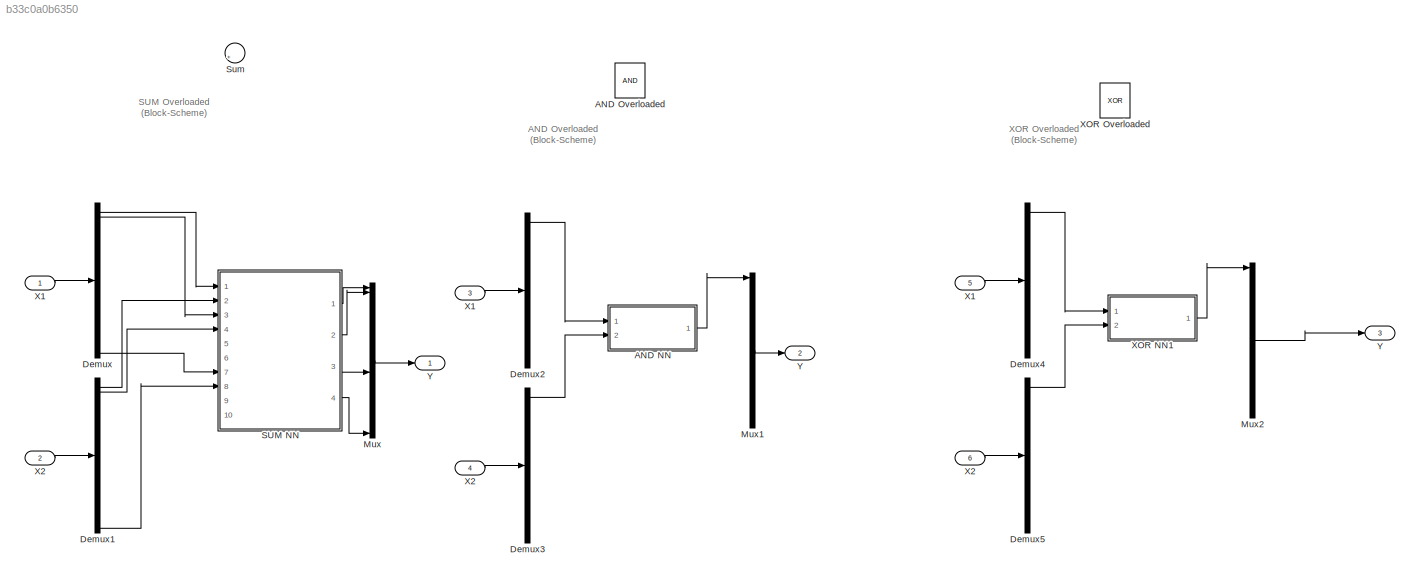
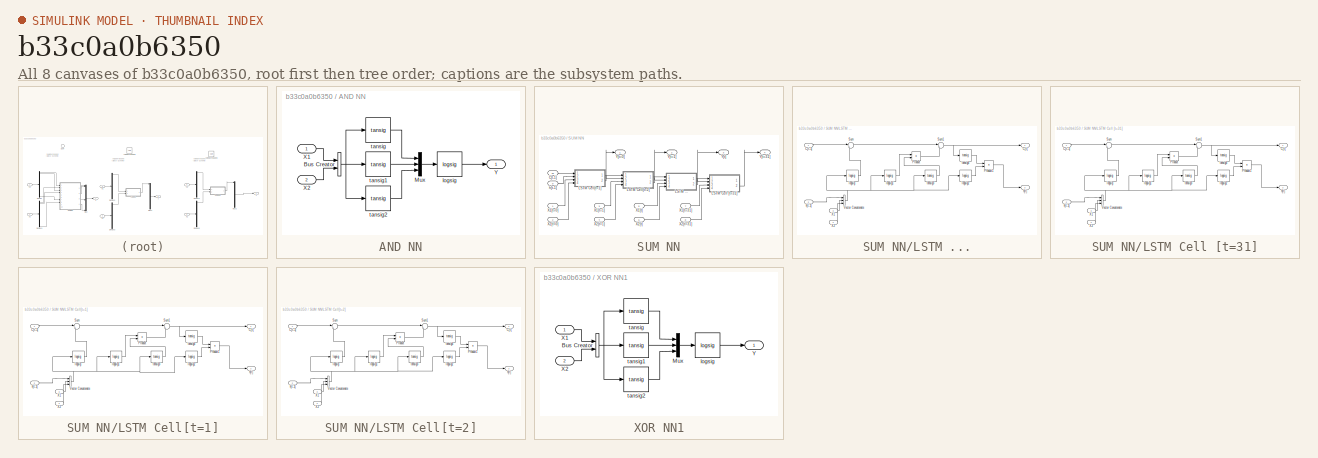
[diagram: thumbnail index - all 8 canvases of the model, root first then tree order]
MODEL slx_b33c0a0b6350
KIND model
CONFIG AbsTol = auto
CONFIG EnableMultiTasking = off
CONFIG FixedStep = auto
CONFIG MaxStep = auto
CONFIG MinStep = auto
CONFIG RelTol = 1e-3
CONFIG SampleTimeConstraint = Unconstrained
CONFIG Solver = VariableStepAuto
CONFIG SolverName = VariableStepAuto
CONFIG StartTime = 0.0
CONFIG StopTime = 10.0
BLOCK [SubSystem] AND NN
  Ports = [2, 1]
  RequestExecContextInheritance = off
BLOCK [BusCreator] AND NN/Bus Creator
  DisplayOption = bar
  InheritFromInputs = on
  Inputs = 2
  Ports = [2, 1]
BLOCK [Mux] AND NN/Mux
  DisplayOption = bar
  Inputs = 3
  Ports = [3, 1]
BLOCK [Inport] AND NN/X1
  IconDisplay = Port number
BLOCK [Inport] AND NN/X2
  IconDisplay = Port number
  Port = 2
BLOCK [Outport] AND NN/Y
  IconDisplay = Port number
BLOCK [Reference] AND NN/logsig  REF=neural/Transfer Functions/logsig
  Ports = [1, 1]
  SourceBlock = neural/Transfer Functions/logsig
  SourceType = LOGSIG
BLOCK [Reference] AND NN/tansig  REF=neural/Transfer Functions/tansig
  Ports = [1, 1]
  SourceBlock = neural/Transfer Functions/tansig
  SourceType = TANSIG
BLOCK [Reference] AND NN/tansig1  REF=neural/Transfer Functions/tansig
  Ports = [1, 1]
  SourceBlock = neural/Transfer Functions/tansig
  SourceType = TANSIG
BLOCK [Reference] AND NN/tansig2  REF=neural/Transfer Functions/tansig
  Ports = [1, 1]
  SourceBlock = neural/Transfer Functions/tansig
  SourceType = TANSIG
BLOCK [Logic] AND Overloaded
  AllPortsSameDT = off
  OutDataTypeStr = boolean
  Ports = [2, 1]
BLOCK [Demux] Demux
  DisplayOption = bar
  Outputs = 32
  Ports = [1, 32]
BLOCK [Demux] Demux1
  DisplayOption = bar
  Outputs = 32
  Ports = [1, 32]
BLOCK [Demux] Demux2
  DisplayOption = bar
  Outputs = 32
  Ports = [1, 32]
BLOCK [Demux] Demux3
  DisplayOption = bar
  Outputs = 32
  Ports = [1, 32]
BLOCK [Demux] Demux4
  DisplayOption = bar
  Outputs = 32
  Ports = [1, 32]
BLOCK [Demux] Demux5
  DisplayOption = bar
  Outputs = 32
  Ports = [1, 32]
BLOCK [Mux] Mux
  DisplayOption = bar
  Inputs = 32
  Ports = [32, 1]
BLOCK [Mux] Mux1
  DisplayOption = bar
  Inputs = 32
  Ports = [32, 1]
BLOCK [Mux] Mux2
  DisplayOption = bar
  Inputs = 32
  Ports = [32, 1]
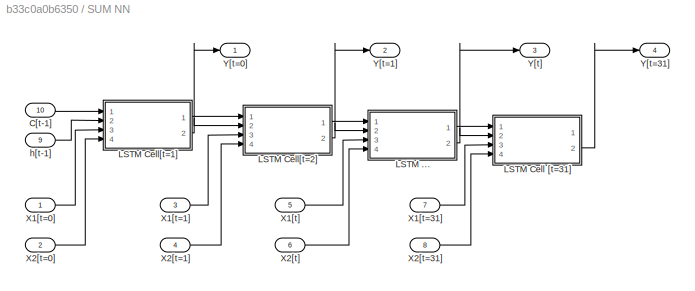
BLOCK [SubSystem] SUM NN
  Ports = [10, 4]
  RequestExecContextInheritance = off
BLOCK [Inport] SUM NN/C[t-1]
  IconDisplay = Port number
  Port = 10
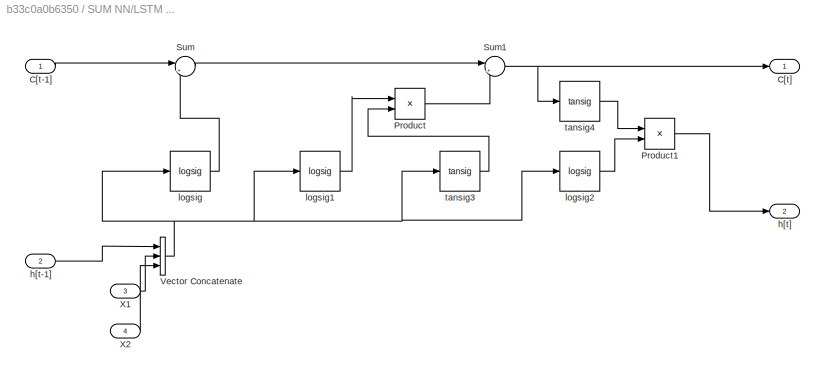
BLOCK [SubSystem] SUM NN/LSTM ...
  Ports = [4, 2]
  RequestExecContextInheritance = off
BLOCK [Inport] SUM NN/LSTM .../C[t-1]
  IconDisplay = Port number
BLOCK [Outport] SUM NN/LSTM .../C[t]
  IconDisplay = Port number
BLOCK [Product] SUM NN/LSTM .../Product
  InputSameDT = off
  OutDataTypeStr = Inherit: Inherit via internal rule
  Ports = [2, 1]
  RndMeth = Floor
  SaturateOnIntegerOverflow = off
BLOCK [Product] SUM NN/LSTM .../Product1
  InputSameDT = off
  OutDataTypeStr = Inherit: Inherit via internal rule
  Ports = [2, 1]
  RndMeth = Floor
  SaturateOnIntegerOverflow = off
BLOCK [Sum] SUM NN/LSTM .../Sum
  IconShape = round
  InputSameDT = off
  Inputs = |++
  OutDataTypeStr = Inherit: Inherit via internal rule
  Ports = [2, 1]
  SaturateOnIntegerOverflow = off
BLOCK [Sum] SUM NN/LSTM .../Sum1
  IconShape = round
  InputSameDT = off
  Inputs = |++
  OutDataTypeStr = Inherit: Inherit via internal rule
  Ports = [2, 1]
  SaturateOnIntegerOverflow = off
BLOCK [Concatenate] SUM NN/LSTM .../Vector Concatenate
  NumInputs = 3
  Ports = [3, 1]
BLOCK [Inport] SUM NN/LSTM .../X1
  IconDisplay = Port number
  Port = 3
BLOCK [Inport] SUM NN/LSTM .../X2
  IconDisplay = Port number
  Port = 4
BLOCK [Inport] SUM NN/LSTM .../h[t-1]
  IconDisplay = Port number
  Port = 2
BLOCK [Outport] SUM NN/LSTM .../h[t]
  IconDisplay = Port number
  Port = 2
BLOCK [Reference] SUM NN/LSTM .../logsig  REF=neural/Transfer Functions/logsig
  Ports = [1, 1]
  SourceBlock = neural/Transfer Functions/logsig
  SourceType = LOGSIG
BLOCK [Reference] SUM NN/LSTM .../logsig1  REF=neural/Transfer Functions/logsig
  Ports = [1, 1]
  SourceBlock = neural/Transfer Functions/logsig
  SourceType = LOGSIG
BLOCK [Reference] SUM NN/LSTM .../logsig2  REF=neural/Transfer Functions/logsig
  Ports = [1, 1]
  SourceBlock = neural/Transfer Functions/logsig
  SourceType = LOGSIG
BLOCK [Reference] SUM NN/LSTM .../tansig3  REF=neural/Transfer Functions/tansig
  Ports = [1, 1]
  SourceBlock = neural/Transfer Functions/tansig
  SourceType = TANSIG
BLOCK [Reference] SUM NN/LSTM .../tansig4  REF=neural/Transfer Functions/tansig
  Ports = [1, 1]
  SourceBlock = neural/Transfer Functions/tansig
  SourceType = TANSIG
BLOCK [SubSystem] SUM NN/LSTM Cell [t=31]
  Ports = [4, 2]
  RequestExecContextInheritance = off
BLOCK [Inport] SUM NN/LSTM Cell [t=31]/C[t-1]
  IconDisplay = Port number
BLOCK [Outport] SUM NN/LSTM Cell [t=31]/C[t]
  IconDisplay = Port number
BLOCK [Product] SUM NN/LSTM Cell [t=31]/Product
  InputSameDT = off
  OutDataTypeStr = Inherit: Inherit via internal rule
  Ports = [2, 1]
  RndMeth = Floor
  SaturateOnIntegerOverflow = off
BLOCK [Product] SUM NN/LSTM Cell [t=31]/Product1
  InputSameDT = off
  OutDataTypeStr = Inherit: Inherit via internal rule
  Ports = [2, 1]
  RndMeth = Floor
  SaturateOnIntegerOverflow = off
BLOCK [Sum] SUM NN/LSTM Cell [t=31]/Sum
  IconShape = round
  InputSameDT = off
  Inputs = |++
  OutDataTypeStr = Inherit: Inherit via internal rule
  Ports = [2, 1]
  SaturateOnIntegerOverflow = off
BLOCK [Sum] SUM NN/LSTM Cell [t=31]/Sum1
  IconShape = round
  InputSameDT = off
  Inputs = |++
  OutDataTypeStr = Inherit: Inherit via internal rule
  Ports = [2, 1]
  SaturateOnIntegerOverflow = off
BLOCK [Concatenate] SUM NN/LSTM Cell [t=31]/Vector Concatenate
  NumInputs = 3
  Ports = [3, 1]
BLOCK [Inport] SUM NN/LSTM Cell [t=31]/X1
  IconDisplay = Port number
  Port = 3
BLOCK [Inport] SUM NN/LSTM Cell [t=31]/X2
  IconDisplay = Port number
  Port = 4
BLOCK [Inport] SUM NN/LSTM Cell [t=31]/h[t-1]
  IconDisplay = Port number
  Port = 2
BLOCK [Outport] SUM NN/LSTM Cell [t=31]/h[t]
  IconDisplay = Port number
  Port = 2
BLOCK [Reference] SUM NN/LSTM Cell [t=31]/logsig  REF=neural/Transfer Functions/logsig
  Ports = [1, 1]
  SourceBlock = neural/Transfer Functions/logsig
  SourceType = LOGSIG
BLOCK [Reference] SUM NN/LSTM Cell [t=31]/logsig1  REF=neural/Transfer Functions/logsig
  Ports = [1, 1]
  SourceBlock = neural/Transfer Functions/logsig
  SourceType = LOGSIG
BLOCK [Reference] SUM NN/LSTM Cell [t=31]/logsig2  REF=neural/Transfer Functions/logsig
  Ports = [1, 1]
  SourceBlock = neural/Transfer Functions/logsig
  SourceType = LOGSIG
BLOCK [Reference] SUM NN/LSTM Cell [t=31]/tansig3  REF=neural/Transfer Functions/tansig
  Ports = [1, 1]
  SourceBlock = neural/Transfer Functions/tansig
  SourceType = TANSIG
BLOCK [Reference] SUM NN/LSTM Cell [t=31]/tansig4  REF=neural/Transfer Functions/tansig
  Ports = [1, 1]
  SourceBlock = neural/Transfer Functions/tansig
  SourceType = TANSIG
BLOCK [SubSystem] SUM NN/LSTM Cell[t=1]
  Ports = [4, 2]
  RequestExecContextInheritance = off
BLOCK [Inport] SUM NN/LSTM Cell[t=1]/C[t-1]
  IconDisplay = Port number
BLOCK [Outport] SUM NN/LSTM Cell[t=1]/C[t]
  IconDisplay = Port number
BLOCK [Product] SUM NN/LSTM Cell[t=1]/Product
  InputSameDT = off
  OutDataTypeStr = Inherit: Inherit via internal rule
  Ports = [2, 1]
  RndMeth = Floor
  SaturateOnIntegerOverflow = off
BLOCK [Product] SUM NN/LSTM Cell[t=1]/Product1
  InputSameDT = off
  OutDataTypeStr = Inherit: Inherit via internal rule
  Ports = [2, 1]
  RndMeth = Floor
  SaturateOnIntegerOverflow = off
BLOCK [Sum] SUM NN/LSTM Cell[t=1]/Sum
  IconShape = round
  InputSameDT = off
  Inputs = |++
  OutDataTypeStr = Inherit: Inherit via internal rule
  Ports = [2, 1]
  SaturateOnIntegerOverflow = off
BLOCK [Sum] SUM NN/LSTM Cell[t=1]/Sum1
  IconShape = round
  InputSameDT = off
  Inputs = |++
  OutDataTypeStr = Inherit: Inherit via internal rule
  Ports = [2, 1]
  SaturateOnIntegerOverflow = off
BLOCK [Concatenate] SUM NN/LSTM Cell[t=1]/Vector Concatenate
  NumInputs = 3
  Ports = [3, 1]
BLOCK [Inport] SUM NN/LSTM Cell[t=1]/X1
  IconDisplay = Port number
  Port = 3
BLOCK [Inport] SUM NN/LSTM Cell[t=1]/X2
  IconDisplay = Port number
  Port = 4
BLOCK [Inport] SUM NN/LSTM Cell[t=1]/h[t-1]
  IconDisplay = Port number
  Port = 2
BLOCK [Outport] SUM NN/LSTM Cell[t=1]/h[t]
  IconDisplay = Port number
  Port = 2
BLOCK [Reference] SUM NN/LSTM Cell[t=1]/logsig  REF=neural/Transfer Functions/logsig
  Ports = [1, 1]
  SourceBlock = neural/Transfer Functions/logsig
  SourceType = LOGSIG
BLOCK [Reference] SUM NN/LSTM Cell[t=1]/logsig1  REF=neural/Transfer Functions/logsig
  Ports = [1, 1]
  SourceBlock = neural/Transfer Functions/logsig
  SourceType = LOGSIG
BLOCK [Reference] SUM NN/LSTM Cell[t=1]/logsig2  REF=neural/Transfer Functions/logsig
  Ports = [1, 1]
  SourceBlock = neural/Transfer Functions/logsig
  SourceType = LOGSIG
BLOCK [Reference] SUM NN/LSTM Cell[t=1]/tansig3  REF=neural/Transfer Functions/tansig
  Ports = [1, 1]
  SourceBlock = neural/Transfer Functions/tansig
  SourceType = TANSIG
BLOCK [Reference] SUM NN/LSTM Cell[t=1]/tansig4  REF=neural/Transfer Functions/tansig
  Ports = [1, 1]
  SourceBlock = neural/Transfer Functions/tansig
  SourceType = TANSIG
BLOCK [SubSystem] SUM NN/LSTM Cell[t=2]
  Ports = [4, 2]
  RequestExecContextInheritance = off
BLOCK [Inport] SUM NN/LSTM Cell[t=2]/C[t-1]
  IconDisplay = Port number
BLOCK [Outport] SUM NN/LSTM Cell[t=2]/C[t]
  IconDisplay = Port number
BLOCK [Product] SUM NN/LSTM Cell[t=2]/Product
  InputSameDT = off
  OutDataTypeStr = Inherit: Inherit via internal rule
  Ports = [2, 1]
  RndMeth = Floor
  SaturateOnIntegerOverflow = off
BLOCK [Product] SUM NN/LSTM Cell[t=2]/Product1
  InputSameDT = off
  OutDataTypeStr = Inherit: Inherit via internal rule
  Ports = [2, 1]
  RndMeth = Floor
  SaturateOnIntegerOverflow = off
BLOCK [Sum] SUM NN/LSTM Cell[t=2]/Sum
  IconShape = round
  InputSameDT = off
  Inputs = |++
  OutDataTypeStr = Inherit: Inherit via internal rule
  Ports = [2, 1]
  SaturateOnIntegerOverflow = off
BLOCK [Sum] SUM NN/LSTM Cell[t=2]/Sum1
  IconShape = round
  InputSameDT = off
  Inputs = |++
  OutDataTypeStr = Inherit: Inherit via internal rule
  Ports = [2, 1]
  SaturateOnIntegerOverflow = off
BLOCK [Concatenate] SUM NN/LSTM Cell[t=2]/Vector Concatenate
  NumInputs = 3
  Ports = [3, 1]
BLOCK [Inport] SUM NN/LSTM Cell[t=2]/X1
  IconDisplay = Port number
  Port = 3
BLOCK [Inport] SUM NN/LSTM Cell[t=2]/X2
  IconDisplay = Port number
  Port = 4
BLOCK [Inport] SUM NN/LSTM Cell[t=2]/h[t-1]
  IconDisplay = Port number
  Port = 2
BLOCK [Outport] SUM NN/LSTM Cell[t=2]/h[t]
  IconDisplay = Port number
  Port = 2
BLOCK [Reference] SUM NN/LSTM Cell[t=2]/logsig  REF=neural/Transfer Functions/logsig
  Ports = [1, 1]
  SourceBlock = neural/Transfer Functions/logsig
  SourceType = LOGSIG
BLOCK [Reference] SUM NN/LSTM Cell[t=2]/logsig1  REF=neural/Transfer Functions/logsig
  Ports = [1, 1]
  SourceBlock = neural/Transfer Functions/logsig
  SourceType = LOGSIG
BLOCK [Reference] SUM NN/LSTM Cell[t=2]/logsig2  REF=neural/Transfer Functions/logsig
  Ports = [1, 1]
  SourceBlock = neural/Transfer Functions/logsig
  SourceType = LOGSIG
BLOCK [Reference] SUM NN/LSTM Cell[t=2]/tansig3  REF=neural/Transfer Functions/tansig
  Ports = [1, 1]
  SourceBlock = neural/Transfer Functions/tansig
  SourceType = TANSIG
BLOCK [Reference] SUM NN/LSTM Cell[t=2]/tansig4  REF=neural/Transfer Functions/tansig
  Ports = [1, 1]
  SourceBlock = neural/Transfer Functions/tansig
  SourceType = TANSIG
BLOCK [Inport] SUM NN/X1[t=0]
  IconDisplay = Port number
BLOCK [Inport] SUM NN/X1[t=1]
  IconDisplay = Port number
  Port = 3
BLOCK [Inport] SUM NN/X1[t=31]
  IconDisplay = Port number
  Port = 7
BLOCK [Inport] SUM NN/X1[t]
  IconDisplay = Port number
  Port = 5
BLOCK [Inport] SUM NN/X2[t=0]
  IconDisplay = Port number
  Port = 2
BLOCK [Inport] SUM NN/X2[t=1]
  IconDisplay = Port number
  Port = 4
BLOCK [Inport] SUM NN/X2[t=31]
  IconDisplay = Port number
  Port = 8
BLOCK [Inport] SUM NN/X2[t]
  IconDisplay = Port number
  Port = 6
BLOCK [Outport] SUM NN/Y[t=0]
  IconDisplay = Port number
BLOCK [Outport] SUM NN/Y[t=1]
  IconDisplay = Port number
  Port = 2
BLOCK [Outport] SUM NN/Y[t=31]
  IconDisplay = Port number
  Port = 4
BLOCK [Outport] SUM NN/Y[t]
  IconDisplay = Port number
  Port = 3
BLOCK [Inport] SUM NN/h[t-1]
  IconDisplay = Port number
  Port = 9
BLOCK [Sum] Sum
  IconShape = round
  InputSameDT = off
  Inputs = |++
  OutDataTypeStr = Inherit: Inherit via internal rule
  Ports = [2, 1]
  SaturateOnIntegerOverflow = off
BLOCK [Inport] X1
  IconDisplay = Port number
BLOCK [Inport] X1 
  IconDisplay = Port number
  Port = 3
BLOCK [Inport] X1   
  IconDisplay = Port number
  Port = 5
BLOCK [Inport] X2
  IconDisplay = Port number
  Port = 2
BLOCK [Inport] X2 
  IconDisplay = Port number
  Port = 4
BLOCK [Inport] X2  
  IconDisplay = Port number
  Port = 6
BLOCK [SubSystem] XOR NN1
  Ports = [2, 1]
  RequestExecContextInheritance = off
BLOCK [BusCreator] XOR NN1/Bus Creator
  DisplayOption = bar
  InheritFromInputs = on
  Inputs = 2
  Ports = [2, 1]
BLOCK [Mux] XOR NN1/Mux
  DisplayOption = bar
  Inputs = 3
  Ports = [3, 1]
BLOCK [Inport] XOR NN1/X1
  IconDisplay = Port number
BLOCK [Inport] XOR NN1/X2
  IconDisplay = Port number
  Port = 2
BLOCK [Outport] XOR NN1/Y
  IconDisplay = Port number
BLOCK [Reference] XOR NN1/logsig  REF=neural/Transfer Functions/logsig
  Ports = [1, 1]
  SourceBlock = neural/Transfer Functions/logsig
  SourceType = LOGSIG
BLOCK [Reference] XOR NN1/tansig  REF=neural/Transfer Functions/tansig
  Ports = [1, 1]
  SourceBlock = neural/Transfer Functions/tansig
  SourceType = TANSIG
BLOCK [Reference] XOR NN1/tansig1  REF=neural/Transfer Functions/tansig
  Ports = [1, 1]
  SourceBlock = neural/Transfer Functions/tansig
  SourceType = TANSIG
BLOCK [Reference] XOR NN1/tansig2  REF=neural/Transfer Functions/tansig
  Ports = [1, 1]
  SourceBlock = neural/Transfer Functions/tansig
  SourceType = TANSIG
BLOCK [Logic] XOR Overloaded
  AllPortsSameDT = off
  Operator = XOR
  OutDataTypeStr = boolean
  Ports = [2, 1]
BLOCK [Outport] Y
  IconDisplay = Port number
BLOCK [Outport] Y 
  IconDisplay = Port number
  Port = 2
BLOCK [Outport] Y  
  IconDisplay = Port number
  Port = 3
ANNOTATION (root): AND Overloaded (Block-Scheme)
ANNOTATION (root): SUM Overloaded (Block-Scheme)
ANNOTATION (root): XOR Overloaded (Block-Scheme)
NET AND NN/Bus Creator:1 -> AND NN/tansig1:1, AND NN/tansig2:1, AND NN/tansig:1
LINE AND NN/Mux:1 -> AND NN/logsig:1
LINE AND NN/X1:1 -> AND NN/Bus Creator:1
LINE AND NN/X2:1 -> AND NN/Bus Creator:2
LINE AND NN/logsig:1 -> AND NN/Y:1
LINE AND NN/tansig1:1 -> AND NN/Mux:2
LINE AND NN/tansig2:1 -> AND NN/Mux:3
LINE AND NN/tansig:1 -> AND NN/Mux:1
LINE AND NN:1 -> Mux1:1
LINE Demux1:2 -> SUM NN:2
LINE Demux1:3 -> SUM NN:4
LINE Demux1:32 -> SUM NN:8
LINE Demux2:2 -> AND NN:1
LINE Demux3:2 -> AND NN:2
LINE Demux4:2 -> XOR NN1:1
LINE Demux5:2 -> XOR NN1:2
LINE Demux:2 -> SUM NN:1
LINE Demux:3 -> SUM NN:3
LINE Demux:32 -> SUM NN:7
LINE Mux1:1 -> Y :1
LINE Mux2:1 -> Y  :1
LINE Mux:1 -> Y:1
LINE SUM NN/C[t-1]:1 -> SUM NN/LSTM Cell[t=1]:1
LINE SUM NN/LSTM .../C[t-1]:1 -> SUM NN/LSTM .../Sum:1
LINE SUM NN/LSTM .../Product1:1 -> SUM NN/LSTM .../h[t]:1
LINE SUM NN/LSTM .../Product:1 -> SUM NN/LSTM .../Sum1:2
NET SUM NN/LSTM .../Sum1:1 -> SUM NN/LSTM .../C[t]:1, SUM NN/LSTM .../tansig4:1
LINE SUM NN/LSTM .../Sum:1 -> SUM NN/LSTM .../Sum1:1
NET SUM NN/LSTM .../Vector Concatenate:1 -> SUM NN/LSTM .../logsig1:1, SUM NN/LSTM .../logsig2:1, SUM NN/LSTM .../logsig:1, SUM NN/LSTM .../tansig3:1
LINE SUM NN/LSTM .../X1:1 -> SUM NN/LSTM .../Vector Concatenate:2
LINE SUM NN/LSTM .../X2:1 -> SUM NN/LSTM .../Vector Concatenate:3
LINE SUM NN/LSTM .../h[t-1]:1 -> SUM NN/LSTM .../Vector Concatenate:1
LINE SUM NN/LSTM .../logsig1:1 -> SUM NN/LSTM .../Product:1
LINE SUM NN/LSTM .../logsig2:1 -> SUM NN/LSTM .../Product1:2
LINE SUM NN/LSTM .../logsig:1 -> SUM NN/LSTM .../Sum:2
LINE SUM NN/LSTM .../tansig3:1 -> SUM NN/LSTM .../Product:2
LINE SUM NN/LSTM .../tansig4:1 -> SUM NN/LSTM .../Product1:1
LINE SUM NN/LSTM ...:1 -> SUM NN/LSTM Cell [t=31]:1
NET SUM NN/LSTM ...:2 -> SUM NN/LSTM Cell [t=31]:2, SUM NN/Y[t]:1
LINE SUM NN/LSTM Cell [t=31]/C[t-1]:1 -> SUM NN/LSTM Cell [t=31]/Sum:1
LINE SUM NN/LSTM Cell [t=31]/Product1:1 -> SUM NN/LSTM Cell [t=31]/h[t]:1
LINE SUM NN/LSTM Cell [t=31]/Product:1 -> SUM NN/LSTM Cell [t=31]/Sum1:2
NET SUM NN/LSTM Cell [t=31]/Sum1:1 -> SUM NN/LSTM Cell [t=31]/C[t]:1, SUM NN/LSTM Cell [t=31]/tansig4:1
LINE SUM NN/LSTM Cell [t=31]/Sum:1 -> SUM NN/LSTM Cell [t=31]/Sum1:1
NET SUM NN/LSTM Cell [t=31]/Vector Concatenate:1 -> SUM NN/LSTM Cell [t=31]/logsig1:1, SUM NN/LSTM Cell [t=31]/logsig2:1, SUM NN/LSTM Cell [t=31]/logsig:1, SUM NN/LSTM Cell [t=31]/tansig3:1
LINE SUM NN/LSTM Cell [t=31]/X1:1 -> SUM NN/LSTM Cell [t=31]/Vector Concatenate:2
LINE SUM NN/LSTM Cell [t=31]/X2:1 -> SUM NN/LSTM Cell [t=31]/Vector Concatenate:3
LINE SUM NN/LSTM Cell [t=31]/h[t-1]:1 -> SUM NN/LSTM Cell [t=31]/Vector Concatenate:1
LINE SUM NN/LSTM Cell [t=31]/logsig1:1 -> SUM NN/LSTM Cell [t=31]/Product:1
LINE SUM NN/LSTM Cell [t=31]/logsig2:1 -> SUM NN/LSTM Cell [t=31]/Product1:2
LINE SUM NN/LSTM Cell [t=31]/logsig:1 -> SUM NN/LSTM Cell [t=31]/Sum:2
LINE SUM NN/LSTM Cell [t=31]/tansig3:1 -> SUM NN/LSTM Cell [t=31]/Product:2
LINE SUM NN/LSTM Cell [t=31]/tansig4:1 -> SUM NN/LSTM Cell [t=31]/Product1:1
LINE SUM NN/LSTM Cell [t=31]:2 -> SUM NN/Y[t=31]:1
LINE SUM NN/LSTM Cell[t=1]/C[t-1]:1 -> SUM NN/LSTM Cell[t=1]/Sum:1
LINE SUM NN/LSTM Cell[t=1]/Product1:1 -> SUM NN/LSTM Cell[t=1]/h[t]:1
LINE SUM NN/LSTM Cell[t=1]/Product:1 -> SUM NN/LSTM Cell[t=1]/Sum1:2
NET SUM NN/LSTM Cell[t=1]/Sum1:1 -> SUM NN/LSTM Cell[t=1]/C[t]:1, SUM NN/LSTM Cell[t=1]/tansig4:1
LINE SUM NN/LSTM Cell[t=1]/Sum:1 -> SUM NN/LSTM Cell[t=1]/Sum1:1
NET SUM NN/LSTM Cell[t=1]/Vector Concatenate:1 -> SUM NN/LSTM Cell[t=1]/logsig1:1, SUM NN/LSTM Cell[t=1]/logsig2:1, SUM NN/LSTM Cell[t=1]/logsig:1, SUM NN/LSTM Cell[t=1]/tansig3:1
LINE SUM NN/LSTM Cell[t=1]/X1:1 -> SUM NN/LSTM Cell[t=1]/Vector Concatenate:2
LINE SUM NN/LSTM Cell[t=1]/X2:1 -> SUM NN/LSTM Cell[t=1]/Vector Concatenate:3
LINE SUM NN/LSTM Cell[t=1]/h[t-1]:1 -> SUM NN/LSTM Cell[t=1]/Vector Concatenate:1
LINE SUM NN/LSTM Cell[t=1]/logsig1:1 -> SUM NN/LSTM Cell[t=1]/Product:1
LINE SUM NN/LSTM Cell[t=1]/logsig2:1 -> SUM NN/LSTM Cell[t=1]/Product1:2
LINE SUM NN/LSTM Cell[t=1]/logsig:1 -> SUM NN/LSTM Cell[t=1]/Sum:2
LINE SUM NN/LSTM Cell[t=1]/tansig3:1 -> SUM NN/LSTM Cell[t=1]/Product:2
LINE SUM NN/LSTM Cell[t=1]/tansig4:1 -> SUM NN/LSTM Cell[t=1]/Product1:1
LINE SUM NN/LSTM Cell[t=1]:1 -> SUM NN/LSTM Cell[t=2]:1
NET SUM NN/LSTM Cell[t=1]:2 -> SUM NN/LSTM Cell[t=2]:2, SUM NN/Y[t=0]:1
LINE SUM NN/LSTM Cell[t=2]/C[t-1]:1 -> SUM NN/LSTM Cell[t=2]/Sum:1
LINE SUM NN/LSTM Cell[t=2]/Product1:1 -> SUM NN/LSTM Cell[t=2]/h[t]:1
LINE SUM NN/LSTM Cell[t=2]/Product:1 -> SUM NN/LSTM Cell[t=2]/Sum1:2
NET SUM NN/LSTM Cell[t=2]/Sum1:1 -> SUM NN/LSTM Cell[t=2]/C[t]:1, SUM NN/LSTM Cell[t=2]/tansig4:1
LINE SUM NN/LSTM Cell[t=2]/Sum:1 -> SUM NN/LSTM Cell[t=2]/Sum1:1
NET SUM NN/LSTM Cell[t=2]/Vector Concatenate:1 -> SUM NN/LSTM Cell[t=2]/logsig1:1, SUM NN/LSTM Cell[t=2]/logsig2:1, SUM NN/LSTM Cell[t=2]/logsig:1, SUM NN/LSTM Cell[t=2]/tansig3:1
LINE SUM NN/LSTM Cell[t=2]/X1:1 -> SUM NN/LSTM Cell[t=2]/Vector Concatenate:2
LINE SUM NN/LSTM Cell[t=2]/X2:1 -> SUM NN/LSTM Cell[t=2]/Vector Concatenate:3
LINE SUM NN/LSTM Cell[t=2]/h[t-1]:1 -> SUM NN/LSTM Cell[t=2]/Vector Concatenate:1
LINE SUM NN/LSTM Cell[t=2]/logsig1:1 -> SUM NN/LSTM Cell[t=2]/Product:1
LINE SUM NN/LSTM Cell[t=2]/logsig2:1 -> SUM NN/LSTM Cell[t=2]/Product1:2
LINE SUM NN/LSTM Cell[t=2]/logsig:1 -> SUM NN/LSTM Cell[t=2]/Sum:2
LINE SUM NN/LSTM Cell[t=2]/tansig3:1 -> SUM NN/LSTM Cell[t=2]/Product:2
LINE SUM NN/LSTM Cell[t=2]/tansig4:1 -> SUM NN/LSTM Cell[t=2]/Product1:1
LINE SUM NN/LSTM Cell[t=2]:1 -> SUM NN/LSTM ...:1
NET SUM NN/LSTM Cell[t=2]:2 -> SUM NN/LSTM ...:2, SUM NN/Y[t=1]:1
LINE SUM NN/X1[t=0]:1 -> SUM NN/LSTM Cell[t=1]:3
LINE SUM NN/X1[t=1]:1 -> SUM NN/LSTM Cell[t=2]:3
LINE SUM NN/X1[t=31]:1 -> SUM NN/LSTM Cell [t=31]:3
LINE SUM NN/X1[t]:1 -> SUM NN/LSTM ...:3
LINE SUM NN/X2[t=0]:1 -> SUM NN/LSTM Cell[t=1]:4
LINE SUM NN/X2[t=1]:1 -> SUM NN/LSTM Cell[t=2]:4
LINE SUM NN/X2[t=31]:1 -> SUM NN/LSTM Cell [t=31]:4
LINE SUM NN/X2[t]:1 -> SUM NN/LSTM ...:4
LINE SUM NN/h[t-1]:1 -> SUM NN/LSTM Cell[t=1]:2
LINE SUM NN:1 -> Mux:1
LINE SUM NN:2 -> Mux:2
LINE SUM NN:3 -> Mux:19
LINE SUM NN:4 -> Mux:32
LINE X1   :1 -> Demux4:1
LINE X1 :1 -> Demux2:1
LINE X1:1 -> Demux:1
LINE X2  :1 -> Demux5:1
LINE X2 :1 -> Demux3:1
LINE X2:1 -> Demux1:1
NET XOR NN1/Bus Creator:1 -> XOR NN1/tansig1:1, XOR NN1/tansig2:1, XOR NN1/tansig:1
LINE XOR NN1/Mux:1 -> XOR NN1/logsig:1
LINE XOR NN1/X1:1 -> XOR NN1/Bus Creator:1
LINE XOR NN1/X2:1 -> XOR NN1/Bus Creator:2
LINE XOR NN1/logsig:1 -> XOR NN1/Y:1
LINE XOR NN1/tansig1:1 -> XOR NN1/Mux:2
LINE XOR NN1/tansig2:1 -> XOR NN1/Mux:3
LINE XOR NN1/tansig:1 -> XOR NN1/Mux:1
LINE XOR NN1:1 -> Mux2:1
note: NET lines group one-source signal fan-out (src -> all destinations, sorted); 1:1 wires keep LINE
